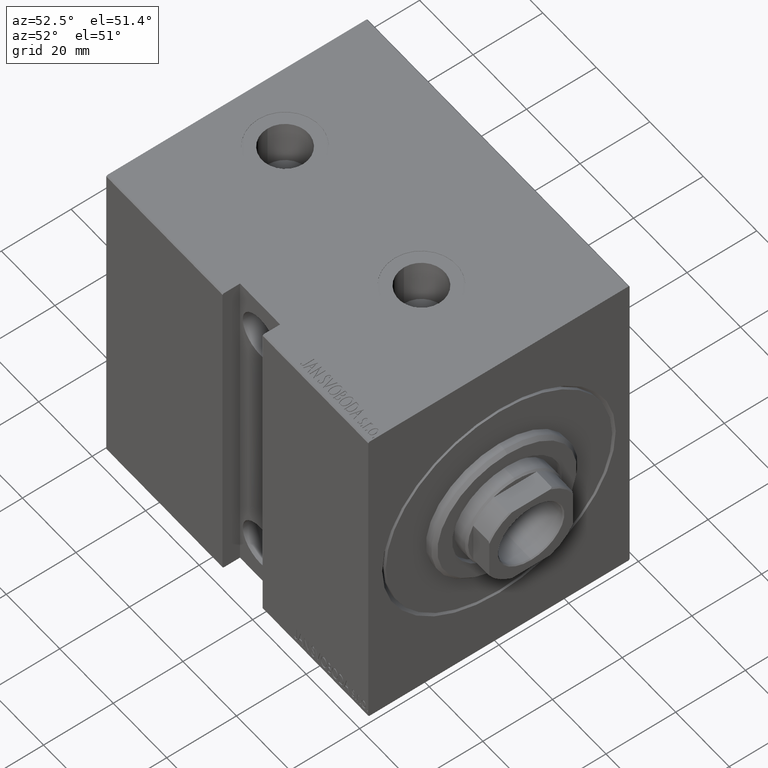
[diagram: clean part render]
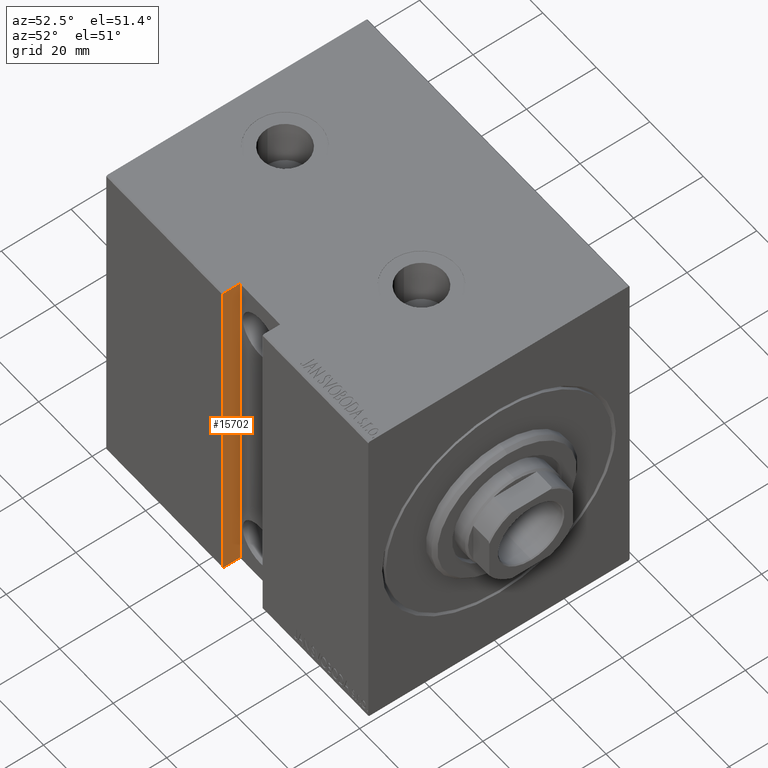
[diagram: same view with one face highlighted and labeled with its STEP entity id]
A machine part, auxiliary view. The second image highlights one B-rep face of the part: STEP entity #15702.
In plain terms, the highlighted planar face has unit normal (-1, 0, -0).
Its self-contained STEP definition (entity closure, byte-faithful):
#1102 = DIRECTION ( 'NONE',  ( -0.000000000000000000, 1.000000000000000000, -0.000000000000000000 ) ) ;
#1690 = VERTEX_POINT ( 'NONE', #28687 ) ;
#2303 = LINE ( 'NONE', #29239, #17084 ) ;
#2828 = VERTEX_POINT ( 'NONE', #4290 ) ;
#4290 = CARTESIAN_POINT ( 'NONE',  ( 54.50000000000001421, 37.50000000000000000, 49.70000000000000284 ) ) ;
#5095 = LINE ( 'NONE', #38317, #41557 ) ;
#5456 = EDGE_CURVE ( 'NONE', #36777, #1690, #5095, .T. ) ;
#6884 = PLANE ( 'NONE',  #41226 ) ;
#7273 = VERTEX_POINT ( 'NONE', #8512 ) ;
#8512 = CARTESIAN_POINT ( 'NONE',  ( 54.50000000000001421, 32.50000000000000711, -50.00000000000000711 ) ) ;
#8893 = CARTESIAN_POINT ( 'NONE',  ( 54.50000000000001421, 32.50000000000000000, 49.99999999999999289 ) ) ;
#9867 = DIRECTION ( 'NONE',  ( -0.000000000000000000, 1.000000000000000000, -0.000000000000000000 ) ) ;
#11400 = DIRECTION ( 'NONE',  ( -9.813077866773479853E-17, -0.7071067811865556774, -0.7071067811865392461 ) ) ;
#12365 = DIRECTION ( 'NONE',  ( -9.813077866773709115E-17, 0.7071067811865392461, -0.7071067811865556774 ) ) ;
#15525 = LINE ( 'NONE', #28773, #22720 ) ;
#15702 = ADVANCED_FACE ( 'NONE', ( #17100 ), #6884, .F. ) ;
#15861 = VECTOR ( 'NONE', #1102, 1000.000000000000000 ) ;
#15898 = EDGE_LOOP ( 'NONE', ( #19671, #22839, #39098, #37364, #18152, #18460 ) ) ;
#17084 = VECTOR ( 'NONE', #42474, 1000.000000000000000 ) ;
#17100 = FACE_OUTER_BOUND ( 'NONE', #15898, .T. ) ;
#17385 = LINE ( 'NONE', #40837, #40650 ) ;
#17833 = LINE ( 'NONE', #27607, #15861 ) ;
#17934 = CARTESIAN_POINT ( 'NONE',  ( 54.50000000000000000, 37.50000000000000000, -49.70000000000000284 ) ) ;
#18152 = ORIENTED_EDGE ( 'NONE', *, *, #28226, .T. ) ;
#18460 = ORIENTED_EDGE ( 'NONE', *, *, #31121, .T. ) ;
#19671 = ORIENTED_EDGE ( 'NONE', *, *, #25584, .T. ) ;
#21491 = VERTEX_POINT ( 'NONE', #39929 ) ;
#22720 = VECTOR ( 'NONE', #9867, 1000.000000000000000 ) ;
#22839 = ORIENTED_EDGE ( 'NONE', *, *, #5456, .T. ) ;
#25060 = EDGE_CURVE ( 'NONE', #27404, #7273, #17385, .T. ) ;
#25584 = EDGE_CURVE ( 'NONE', #2828, #36777, #2303, .T. ) ;
#27404 = VERTEX_POINT ( 'NONE', #8893 ) ;
#27607 = CARTESIAN_POINT ( 'NONE',  ( 54.50000000000000000, 32.50000000000000000, -50.00000000000000711 ) ) ;
#28226 = EDGE_CURVE ( 'NONE', #27404, #21491, #15525, .T. ) ;
#28687 = CARTESIAN_POINT ( 'NONE',  ( 54.50000000000000000, 37.19999999999998863, -50.00000000000000711 ) ) ;
#28773 = CARTESIAN_POINT ( 'NONE',  ( 54.50000000000001421, 32.50000000000000000, 49.99999999999999289 ) ) ;
#29239 = CARTESIAN_POINT ( 'NONE',  ( 54.50000000000000000, 37.50000000000000000, -50.00000000000000711 ) ) ;
#30197 = DIRECTION ( 'NONE',  ( -1.387778780781445676E-16, -0.000000000000000000, -1.000000000000000000 ) ) ;
#30355 = DIRECTION ( 'NONE',  ( -1.387778780781445676E-16, 0.000000000000000000, -1.000000000000000000 ) ) ;
#31121 = EDGE_CURVE ( 'NONE', #21491, #2828, #41479, .T. ) ;
#32943 = EDGE_CURVE ( 'NONE', #7273, #1690, #17833, .T. ) ;
#35811 = CARTESIAN_POINT ( 'NONE',  ( 54.50000000000001421, 37.19999999999998153, 50.00000000000001421 ) ) ;
#36777 = VERTEX_POINT ( 'NONE', #17934 ) ;
#37364 = ORIENTED_EDGE ( 'NONE', *, *, #25060, .F. ) ;
#38317 = CARTESIAN_POINT ( 'NONE',  ( 54.50000000000000000, 37.50000000000000711, -49.70000000000000284 ) ) ;
#39098 = ORIENTED_EDGE ( 'NONE', *, *, #32943, .F. ) ;
#39904 = DIRECTION ( 'NONE',  ( 1.000000000000000000, 0.000000000000000000, -1.387778780781445676E-16 ) ) ;
#39929 = CARTESIAN_POINT ( 'NONE',  ( 54.50000000000001421, 37.19999999999998153, 49.99999999999999289 ) ) ;
#40650 = VECTOR ( 'NONE', #30197, 1000.000000000000000 ) ;
#40837 = CARTESIAN_POINT ( 'NONE',  ( 54.50000000000000000, 32.50000000000000000, -50.00000000000000711 ) ) ;
#41226 = AXIS2_PLACEMENT_3D ( 'NONE', #42940, #39904, #30355 ) ;
#41479 = LINE ( 'NONE', #35811, #41498 ) ;
#41498 = VECTOR ( 'NONE', #12365, 1000.000000000000114 ) ;
#41557 = VECTOR ( 'NONE', #11400, 1000.000000000000114 ) ;
#42474 = DIRECTION ( 'NONE',  ( -1.387778780781445676E-16, -0.000000000000000000, -1.000000000000000000 ) ) ;
#42940 = CARTESIAN_POINT ( 'NONE',  ( 54.50000000000000000, 32.50000000000000000, -50.00000000000000711 ) ) ;